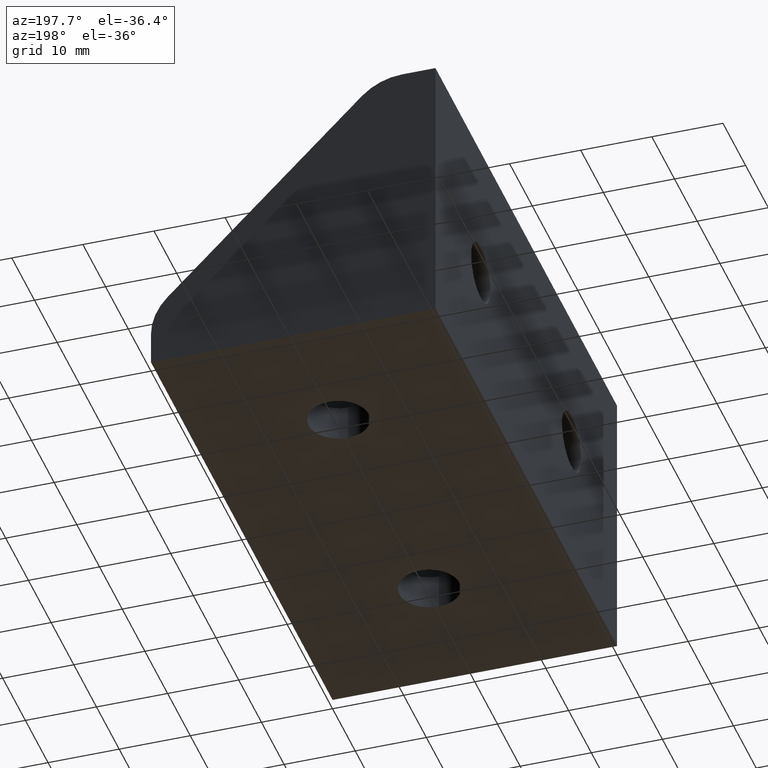
[diagram: clean part render]
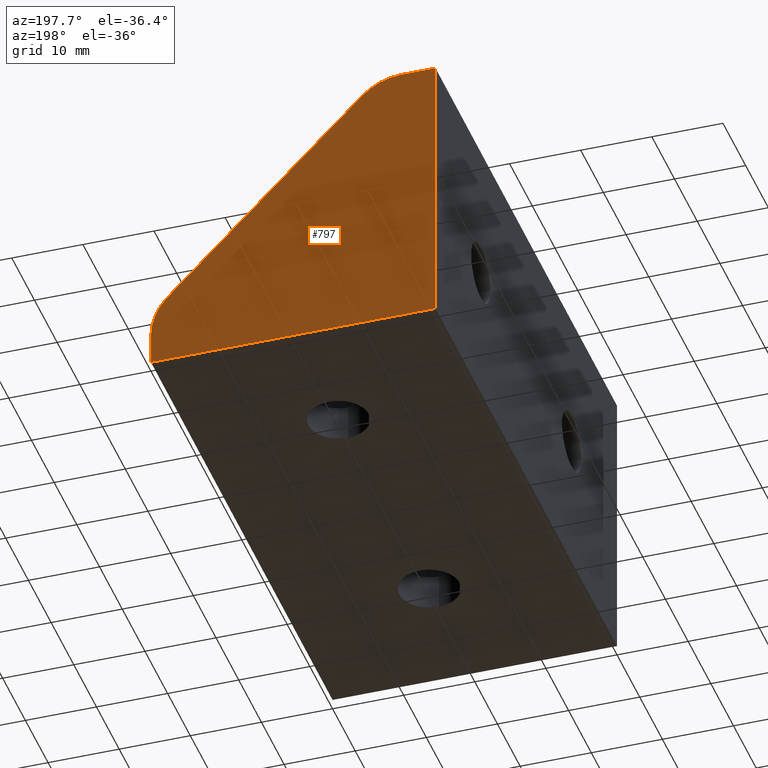
[diagram: same view with one face highlighted and labeled with its STEP entity id]
A machine part, auxiliary view. The second image highlights one B-rep face of the part: STEP entity #797.
In plain terms, the highlighted planar face has unit normal (0, 1, 0).
Its self-contained STEP definition (entity closure, byte-faithful):
#675=CARTESIAN_POINT('',(40.000000000000021,39.999999999999993,4.686291501015238));
#676=VERTEX_POINT('',#675);
#677=CARTESIAN_POINT('',(40.000000000000021,39.999999999999993,-2.449294E-015));
#678=VERTEX_POINT('',#677);
#679=CARTESIAN_POINT('',(40.000000000000021,39.999999999999993,4.686291501015245));
#680=DIRECTION('',(0.0,0.0,-1.0));
#681=VECTOR('',#680,4.686291501015248);
#682=LINE('',#679,#681);
#683=EDGE_CURVE('',#676,#678,#682,.T.);
#725=CARTESIAN_POINT('',(4.686291501015246,40.0,40.000000000000007));
#726=VERTEX_POINT('',#725);
#733=CARTESIAN_POINT('',(4.898587E-015,40.0,40.000000000000007));
#734=VERTEX_POINT('',#733);
#735=CARTESIAN_POINT('',(4.898587E-015,40.0,40.000000000000007));
#736=DIRECTION('',(1.0,0.0,0.0));
#737=VECTOR('',#736,4.686291501015241);
#738=LINE('',#735,#737);
#739=EDGE_CURVE('',#734,#726,#738,.T.);
#750=CARTESIAN_POINT('',(42.000000000000021,39.999999999999993,-2.000000000000003));
#751=DIRECTION('',(0.0,1.0,0.0));
#752=DIRECTION('',(-1.0,0.0,0.0));
#753=AXIS2_PLACEMENT_3D('',#750,#751,#752);
#754=PLANE('',#753);
#755=ORIENTED_EDGE('',*,*,#739,.T.);
#756=CARTESIAN_POINT('',(10.343145750507640,40.0,37.656854249492390));
#757=VERTEX_POINT('',#756);
#758=CARTESIAN_POINT('',(4.686291501015246,40.0,32.000000000000007));
#759=DIRECTION('',(1.224647E-016,1.0,-6.123234E-017));
#760=DIRECTION('',(-1.0,1.224647E-016,-7.498799E-033));
#761=AXIS2_PLACEMENT_3D('',#758,#759,#760);
#762=CIRCLE('',#761,8.0);
#763=EDGE_CURVE('',#726,#757,#762,.T.);
#764=ORIENTED_EDGE('',*,*,#763,.T.);
#765=CARTESIAN_POINT('',(37.656854249492376,39.999999999999993,10.343145750507629));
#766=VERTEX_POINT('',#765);
#767=CARTESIAN_POINT('',(10.343145750507654,40.0,37.656854249492405));
#768=DIRECTION('',(0.707106781186547,-1.839478E-016,-0.707106781186548));
#769=VECTOR('',#768,38.627416997969505);
#770=LINE('',#767,#769);
#771=EDGE_CURVE('',#757,#766,#770,.T.);
#772=ORIENTED_EDGE('',*,*,#771,.T.);
#773=CARTESIAN_POINT('',(32.000000000000007,39.999999999999993,4.686291501015238));
#774=DIRECTION('',(1.224647E-016,1.0,-6.123234E-017));
#775=DIRECTION('',(-1.0,1.224647E-016,-7.498799E-033));
#776=AXIS2_PLACEMENT_3D('',#773,#774,#775);
#777=CIRCLE('',#776,8.0);
#778=EDGE_CURVE('',#766,#676,#777,.T.);
#779=ORIENTED_EDGE('',*,*,#778,.T.);
#780=ORIENTED_EDGE('',*,*,#683,.T.);
#781=CARTESIAN_POINT('',(4.898587E-015,40.0,-2.449294E-015));
#782=VERTEX_POINT('',#781);
#783=CARTESIAN_POINT('',(40.000000000000021,39.999999999999993,-2.449294E-015));
#784=DIRECTION('',(-1.0,0.0,0.0));
#785=VECTOR('',#784,40.000000000000014);
#786=LINE('',#783,#785);
#787=EDGE_CURVE('',#678,#782,#786,.T.);
#788=ORIENTED_EDGE('',*,*,#787,.T.);
#789=CARTESIAN_POINT('',(4.898587E-015,40.0,-2.449294E-015));
#790=DIRECTION('',(0.0,0.0,1.0));
#791=VECTOR('',#790,40.000000000000007);
#792=LINE('',#789,#791);
#793=EDGE_CURVE('',#782,#734,#792,.T.);
#794=ORIENTED_EDGE('',*,*,#793,.T.);
#795=EDGE_LOOP('',(#755,#764,#772,#779,#780,#788,#794));
#796=FACE_OUTER_BOUND('',#795,.T.);
#797=ADVANCED_FACE('',(#796),#754,.T.);